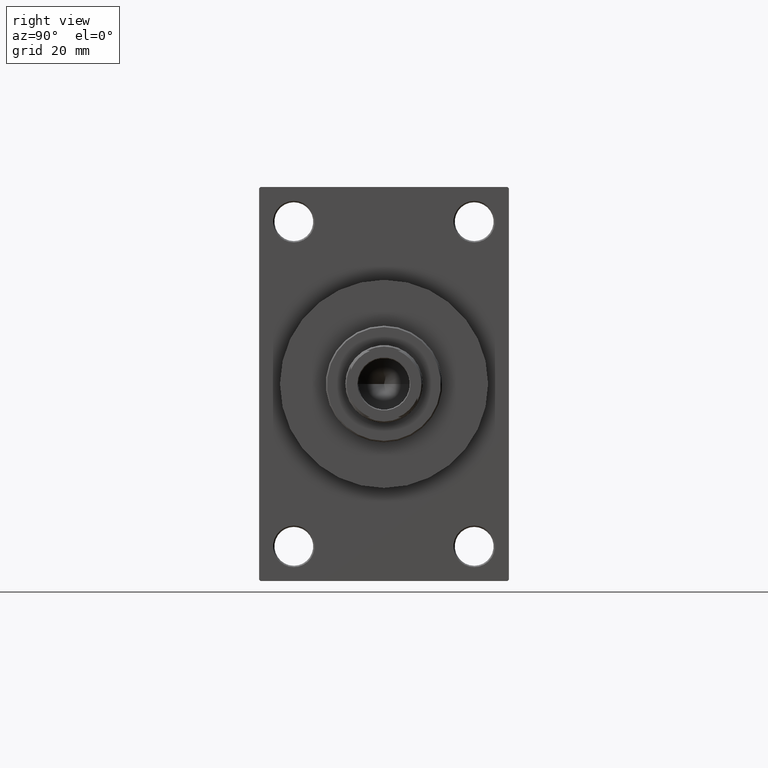
[diagram: clean part render]
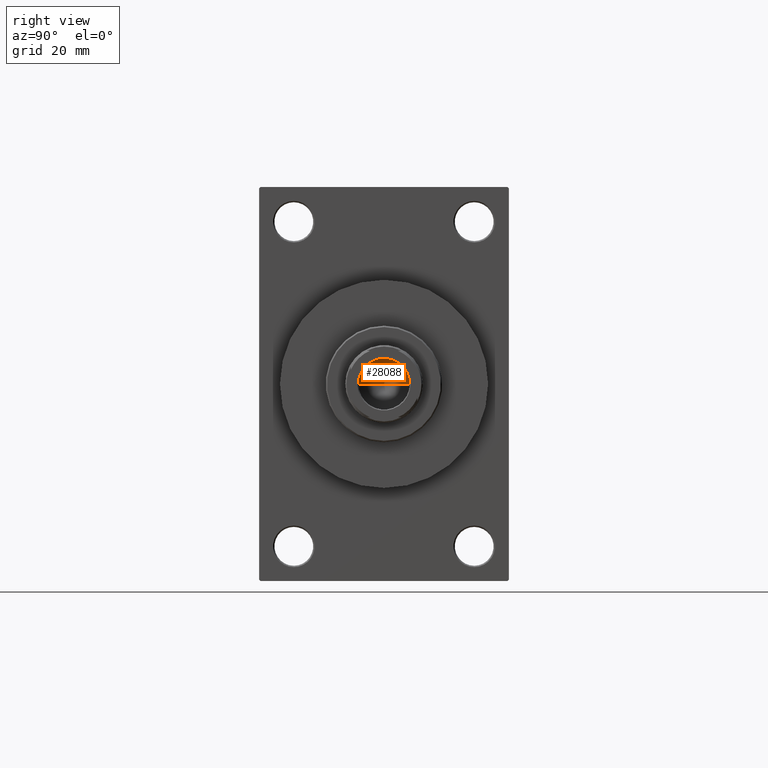
[diagram: same view with one face highlighted and labeled with its STEP entity id]
A machine part, right view. The second image highlights one B-rep face of the part: STEP entity #28088.
In plain terms, the highlighted conical surface has half-angle 59 deg.
Its self-contained STEP definition (entity closure, byte-faithful):
#621 = EDGE_LOOP ( 'NONE', ( #43261, #11021, #35633 ) ) ;
#2890 = CARTESIAN_POINT ( 'NONE',  ( 0.000000000000000000, 0.000000000000000000, 114.9999999999999858 ) ) ;
#3767 = CARTESIAN_POINT ( 'NONE',  ( 0.000000000000000000, 0.000000000000000000, 114.9999999999999858 ) ) ;
#5955 = CARTESIAN_POINT ( 'NONE',  ( 9.249999999999994671, 0.000000000000000000, 114.9999999999999858 ) ) ;
#9548 = EDGE_CURVE ( 'NONE', #13551, #27200, #35773, .T. ) ;
#11021 = ORIENTED_EDGE ( 'NONE', *, *, #42040, .T. ) ;
#13055 = VECTOR ( 'NONE', #25155, 1000.000000000000000 ) ;
#13551 = VERTEX_POINT ( 'NONE', #45417 ) ;
#16945 = AXIS2_PLACEMENT_3D ( 'NONE', #2890, #24832, #42778 ) ;
#17759 = CARTESIAN_POINT ( 'NONE',  ( 9.249999999999994671, 0.000000000000000000, 114.9999999999999858 ) ) ;
#18328 = DIRECTION ( 'NONE',  ( -0.000000000000000000, -0.000000000000000000, 1.000000000000000000 ) ) ;
#19743 = DIRECTION ( 'NONE',  ( 1.000000000000000000, 0.000000000000000000, 0.000000000000000000 ) ) ;
#19968 = CIRCLE ( 'NONE', #16945, 9.249999999999994671 ) ;
#22199 = VECTOR ( 'NONE', #28354, 1000.000000000000000 ) ;
#24832 = DIRECTION ( 'NONE',  ( -0.000000000000000000, -0.000000000000000000, 1.000000000000000000 ) ) ;
#25155 = DIRECTION ( 'NONE',  ( -0.8571673007021117785, 1.049727191138617956E-16, 0.5150380749100550437 ) ) ;
#25473 = FACE_OUTER_BOUND ( 'NONE', #621, .T. ) ;
#27200 = VERTEX_POINT ( 'NONE', #17759 ) ;
#28088 = ADVANCED_FACE ( 'NONE', ( #25473 ), #37084, .F. ) ;
#28283 = CARTESIAN_POINT ( 'NONE',  ( -9.249999999999994671, 1.132798289211300909E-15, 114.9999999999999858 ) ) ;
#28354 = DIRECTION ( 'NONE',  ( 0.8571673007021117785, 0.000000000000000000, 0.5150380749100550437 ) ) ;
#28374 = VERTEX_POINT ( 'NONE', #44068 ) ;
#35468 = LINE ( 'NONE', #28283, #13055 ) ;
#35633 = ORIENTED_EDGE ( 'NONE', *, *, #43940, .T. ) ;
#35773 = LINE ( 'NONE', #5955, #22199 ) ;
#37084 = CONICAL_SURFACE ( 'NONE', #42458, 9.249999999999994671, 1.029744258676653423 ) ;
#42040 = EDGE_CURVE ( 'NONE', #13551, #28374, #35468, .T. ) ;
#42458 = AXIS2_PLACEMENT_3D ( 'NONE', #3767, #18328, #19743 ) ;
#42778 = DIRECTION ( 'NONE',  ( 1.000000000000000000, 0.000000000000000000, 0.000000000000000000 ) ) ;
#43261 = ORIENTED_EDGE ( 'NONE', *, *, #9548, .F. ) ;
#43940 = EDGE_CURVE ( 'NONE', #28374, #27200, #19968, .T. ) ;
#44068 = CARTESIAN_POINT ( 'NONE',  ( -9.249999999999994671, 1.132798289211300909E-15, 114.9999999999999858 ) ) ;
#45417 = CARTESIAN_POINT ( 'NONE',  ( -1.063698371622866236E-14, 0.000000000000000000, 109.4420392739950501 ) ) ;